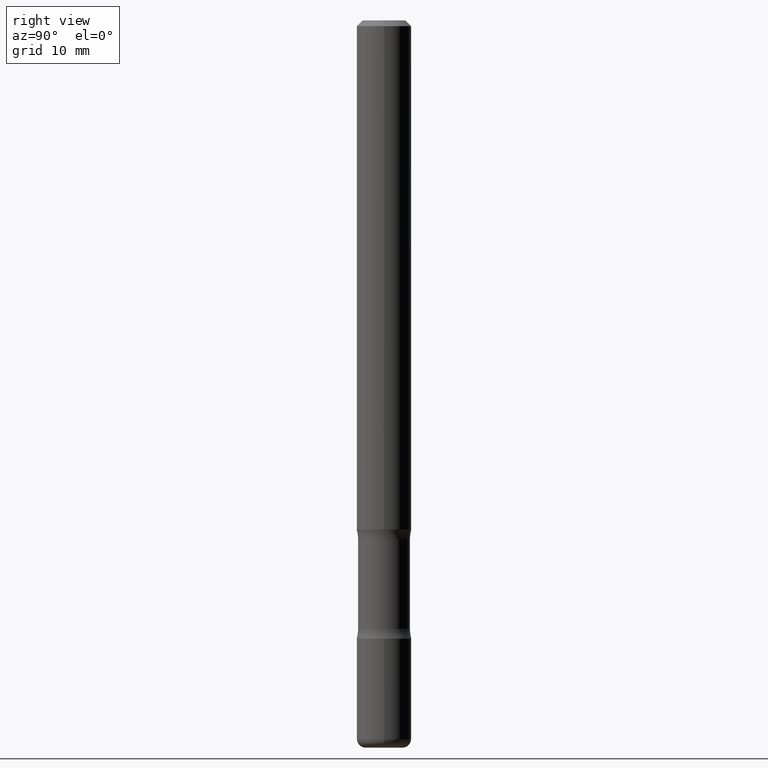
[diagram: clean part render]
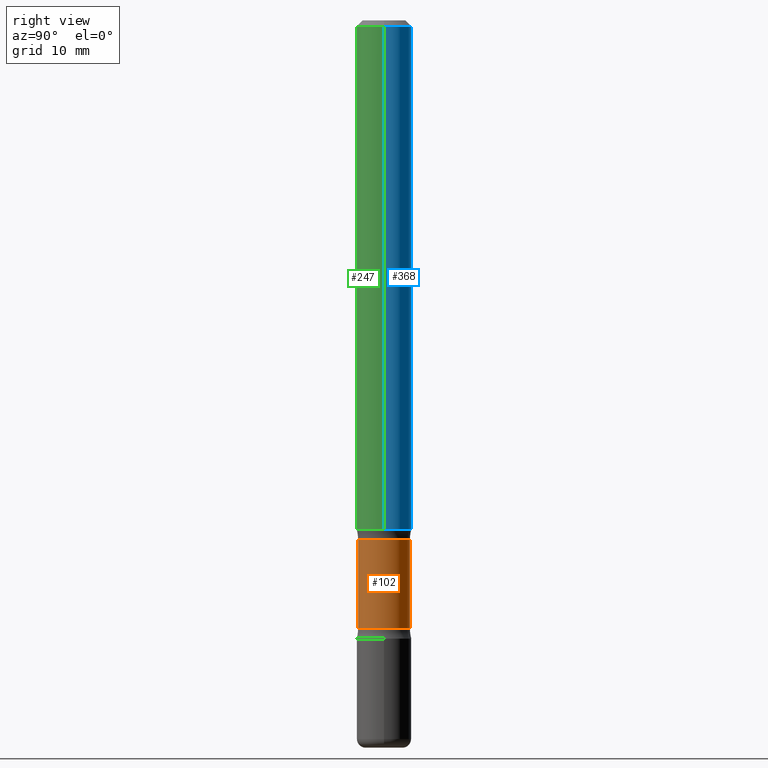
[diagram: same view with three faces highlighted in distinct colors, each labeled with its STEP entity id]
A machine part, right view with three faces highlighted in distinct colors.
Their STEP definitions:

[orange] entity #102 — the highlighted cylindrical surface (edge-blend (fillet) strip) has radius 2.2622 mm, axis along (0, -0, -1).
#14 = DIRECTION ( 'NONE',  ( 2.553476385947133355E-29, -3.336808337214295667E-15, -1.000000000000000000 ) ) ;
#21 = DIRECTION ( 'NONE',  ( 6.982962677686265133E-15, 1.000000000000000000, -3.067338098149349877E-15 ) ) ;
#35 = AXIS2_PLACEMENT_3D ( 'NONE', #134, #531, #336 ) ;
#44 = AXIS2_PLACEMENT_3D ( 'NONE', #393, #344, #498 ) ;
#78 = VECTOR ( 'NONE', #501, 39.37007874015748143 ) ;
#102 = ADVANCED_FACE ( 'NONE', ( #471 ), #425, .T. ) ;
#108 = CIRCLE ( 'NONE', #44, 0.08906249999999993339 ) ;
#134 = CARTESIAN_POINT ( 'NONE',  ( 6.154174857873591467E-29, -8.670700971497045879E-15, -2.500000000000000000 ) ) ;
#174 = ORIENTED_EDGE ( 'NONE', *, *, #269, .F. ) ;
#205 = ORIENTED_EDGE ( 'NONE', *, *, #530, .T. ) ;
#208 = VERTEX_POINT ( 'NONE', #372 ) ;
#217 = VECTOR ( 'NONE', #277, 39.37007874015748143 ) ;
#236 = CARTESIAN_POINT ( 'NONE',  ( 4.325656488947447574E-29, -6.281246590105103764E-15, -1.783910210022204623 ) ) ;
#239 = CARTESIAN_POINT ( 'NONE',  ( -6.270923951087521301E-16, -0.08906250000000723310, -2.091089789977795377 ) ) ;
#254 = EDGE_LOOP ( 'NONE', ( #452, #205, #174, #520 ) ) ;
#269 = EDGE_CURVE ( 'NONE', #208, #293, #108, .T. ) ;
#277 = DIRECTION ( 'NONE',  ( 2.553476385947133355E-29, -3.336808337214295667E-15, -1.000000000000000000 ) ) ;
#293 = VERTEX_POINT ( 'NONE', #239 ) ;
#321 = EDGE_CURVE ( 'NONE', #380, #208, #555, .T. ) ;
#336 = DIRECTION ( 'NONE',  ( 6.982962677686265133E-15, 1.000000000000000000, -6.134676196298701332E-15 ) ) ;
#344 = DIRECTION ( 'NONE',  ( 2.553476385947133355E-29, -3.336808337214295667E-15, -1.000000000000000000 ) ) ;
#372 = CARTESIAN_POINT ( 'NONE',  ( 6.219201134814836160E-16, 0.08906249999999261979, -2.091089789977795821 ) ) ;
#380 = VERTEX_POINT ( 'NONE', #457 ) ;
#393 = CARTESIAN_POINT ( 'NONE',  ( 5.110032292609207884E-29, -7.306245973522905960E-15, -2.091089789977795821 ) ) ;
#402 = LINE ( 'NONE', #454, #78 ) ;
#417 = CARTESIAN_POINT ( 'NONE',  ( -6.270923951087611034E-16, -0.08906250000000623390, -1.783910210022204401 ) ) ;
#425 = CYLINDRICAL_SURFACE ( 'NONE', #35, 0.08906249999999993339 ) ;
#429 = VERTEX_POINT ( 'NONE', #417 ) ;
#431 = CIRCLE ( 'NONE', #456, 0.08906249999999994726 ) ;
#451 = EDGE_CURVE ( 'NONE', #380, #429, #431, .T. ) ;
#452 = ORIENTED_EDGE ( 'NONE', *, *, #451, .T. ) ;
#454 = CARTESIAN_POINT ( 'NONE',  ( -6.110131029264649859E-16, -0.08906250000000860700, -2.499999999999999556 ) ) ;
#456 = AXIS2_PLACEMENT_3D ( 'NONE', #236, #14, #21 ) ;
#457 = CARTESIAN_POINT ( 'NONE',  ( 6.219201134814759246E-16, 0.08906249999999366063, -1.783910210022204845 ) ) ;
#464 = CARTESIAN_POINT ( 'NONE',  ( 6.219201134814940684E-16, 0.08906249999999125977, -2.500000000000000444 ) ) ;
#471 = FACE_OUTER_BOUND ( 'NONE', #254, .T. ) ;
#498 = DIRECTION ( 'NONE',  ( 6.982962677686265133E-15, 1.000000000000000000, -3.067338098149350666E-15 ) ) ;
#501 = DIRECTION ( 'NONE',  ( 2.553476385947133355E-29, -3.336808337214295667E-15, -1.000000000000000000 ) ) ;
#520 = ORIENTED_EDGE ( 'NONE', *, *, #321, .F. ) ;
#530 = EDGE_CURVE ( 'NONE', #429, #293, #402, .T. ) ;
#531 = DIRECTION ( 'NONE',  ( 2.553476385947133355E-29, -3.336808337214295667E-15, -1.000000000000000000 ) ) ;
#555 = LINE ( 'NONE', #464, #217 ) ;

[blue] entity #368 — the highlighted cylindrical surface (edge-blend (fillet) strip) has radius 2.3812 mm, axis along (-0, 0, 1).
#4 = AXIS2_PLACEMENT_3D ( 'NONE', #150, #148, #233 ) ;
#6 = ORIENTED_EDGE ( 'NONE', *, *, #92, .F. ) ;
#7 = LINE ( 'NONE', #183, #430 ) ;
#42 = CARTESIAN_POINT ( 'NONE',  ( -0.09374999999999981959, 5.848231242562233185E-16, -0.02000000000000001776 ) ) ;
#58 = VERTEX_POINT ( 'NONE', #341 ) ;
#68 = DIRECTION ( 'NONE',  ( -2.445468806185136597E-29, 3.491481338843145583E-15, 1.000000000000000000 ) ) ;
#76 = EDGE_CURVE ( 'NONE', #249, #58, #7, .T. ) ;
#82 = DIRECTION ( 'NONE',  ( -2.445468806185136877E-29, 3.491481338843145188E-15, 1.000000000000000000 ) ) ;
#92 = EDGE_CURVE ( 'NONE', #58, #164, #177, .T. ) ;
#126 = LINE ( 'NONE', #330, #266 ) ;
#148 = DIRECTION ( 'NONE',  ( -2.445468806185136597E-29, 3.491481338843145583E-15, 1.000000000000000000 ) ) ;
#150 = CARTESIAN_POINT ( 'NONE',  ( 4.279570410823988484E-29, -6.110092342975504671E-15, -1.750000000000000000 ) ) ;
#164 = VERTEX_POINT ( 'NONE', #42 ) ;
#171 = DIRECTION ( 'NONE',  ( 1.000000000000000000, -6.982962677686267499E-15, 0.000000000000000000 ) ) ;
#172 = EDGE_LOOP ( 'NONE', ( #436, #337, #6, #434 ) ) ;
#177 = CIRCLE ( 'NONE', #200, 0.09374999999999981959 ) ;
#183 = CARTESIAN_POINT ( 'NONE',  ( 0.09374999999999991673, -6.546527510330869125E-16, 4.571415727308685602E-30 ) ) ;
#200 = AXIS2_PLACEMENT_3D ( 'NONE', #428, #540, #171 ) ;
#201 = AXIS2_PLACEMENT_3D ( 'NONE', #500, #68, #229 ) ;
#227 = CIRCLE ( 'NONE', #4, 0.09375000000000004163 ) ;
#229 = DIRECTION ( 'NONE',  ( 1.000000000000000000, -6.982962677686266711E-15, 4.876176775795935793E-29 ) ) ;
#233 = DIRECTION ( 'NONE',  ( 1.000000000000000000, -6.982962677686269866E-15, 0.000000000000000000 ) ) ;
#249 = VERTEX_POINT ( 'NONE', #556 ) ;
#266 = VECTOR ( 'NONE', #82, 39.37007874015748143 ) ;
#312 = FACE_OUTER_BOUND ( 'NONE', #172, .T. ) ;
#330 = CARTESIAN_POINT ( 'NONE',  ( -0.09374999999999991673, 6.661338147750933326E-16, -4.611501647113969791E-30 ) ) ;
#337 = ORIENTED_EDGE ( 'NONE', *, *, #348, .T. ) ;
#341 = CARTESIAN_POINT ( 'NONE',  ( 0.09374999999999981959, -7.130013140679428044E-16, -0.02000000000000001776 ) ) ;
#348 = EDGE_CURVE ( 'NONE', #391, #164, #126, .T. ) ;
#350 = DIRECTION ( 'NONE',  ( -2.445468806185136877E-29, 3.491481338843145188E-15, 1.000000000000000000 ) ) ;
#351 = CARTESIAN_POINT ( 'NONE',  ( -0.09375000000000004163, -2.423827170101085722E-15, -1.750000000000000000 ) ) ;
#364 = EDGE_CURVE ( 'NONE', #249, #391, #227, .T. ) ;
#368 = ADVANCED_FACE ( 'NONE', ( #312 ), #407, .T. ) ;
#391 = VERTEX_POINT ( 'NONE', #351 ) ;
#407 = CYLINDRICAL_SURFACE ( 'NONE', #201, 0.09374999999999991673 ) ;
#428 = CARTESIAN_POINT ( 'NONE',  ( 4.890937612370276662E-31, -6.982962677686296539E-17, -0.02000000000000001776 ) ) ;
#430 = VECTOR ( 'NONE', #350, 39.37007874015748143 ) ;
#434 = ORIENTED_EDGE ( 'NONE', *, *, #76, .F. ) ;
#436 = ORIENTED_EDGE ( 'NONE', *, *, #364, .T. ) ;
#500 = CARTESIAN_POINT ( 'NONE',  ( 0.000000000000000000, 0.000000000000000000, 0.000000000000000000 ) ) ;
#540 = DIRECTION ( 'NONE',  ( -2.445468806185136597E-29, 3.491481338843145583E-15, 1.000000000000000000 ) ) ;
#556 = CARTESIAN_POINT ( 'NONE',  ( 0.09375000000000004163, -6.764745094008592175E-15, -1.750000000000000000 ) ) ;

[green] entity #247 — the highlighted cylindrical surface (edge-blend (fillet) strip) has radius 2.3812 mm, axis along (-0, 0, 1).
#7 = LINE ( 'NONE', #183, #430 ) ;
#15 = CIRCLE ( 'NONE', #86, 0.09374999999999981959 ) ;
#39 = CARTESIAN_POINT ( 'NONE',  ( 4.890937612370276662E-31, -6.982962677686296539E-17, -0.02000000000000001776 ) ) ;
#42 = CARTESIAN_POINT ( 'NONE',  ( -0.09374999999999981959, 5.848231242562233185E-16, -0.02000000000000001776 ) ) ;
#58 = VERTEX_POINT ( 'NONE', #341 ) ;
#63 = ORIENTED_EDGE ( 'NONE', *, *, #248, .T. ) ;
#76 = EDGE_CURVE ( 'NONE', #249, #58, #7, .T. ) ;
#82 = DIRECTION ( 'NONE',  ( -2.445468806185136877E-29, 3.491481338843145188E-15, 1.000000000000000000 ) ) ;
#86 = AXIS2_PLACEMENT_3D ( 'NONE', #39, #324, #365 ) ;
#126 = LINE ( 'NONE', #330, #266 ) ;
#164 = VERTEX_POINT ( 'NONE', #42 ) ;
#183 = CARTESIAN_POINT ( 'NONE',  ( 0.09374999999999991673, -6.546527510330869125E-16, 4.571415727308685602E-30 ) ) ;
#195 = CARTESIAN_POINT ( 'NONE',  ( 0.000000000000000000, 0.000000000000000000, 0.000000000000000000 ) ) ;
#202 = CARTESIAN_POINT ( 'NONE',  ( 4.279570410823988484E-29, -6.110092342975504671E-15, -1.750000000000000000 ) ) ;
#245 = AXIS2_PLACEMENT_3D ( 'NONE', #195, #366, #553 ) ;
#247 = ADVANCED_FACE ( 'NONE', ( #468 ), #291, .T. ) ;
#248 = EDGE_CURVE ( 'NONE', #391, #249, #333, .T. ) ;
#249 = VERTEX_POINT ( 'NONE', #556 ) ;
#264 = ORIENTED_EDGE ( 'NONE', *, *, #348, .F. ) ;
#266 = VECTOR ( 'NONE', #82, 39.37007874015748143 ) ;
#283 = DIRECTION ( 'NONE',  ( 1.000000000000000000, -6.982962677686269866E-15, 0.000000000000000000 ) ) ;
#291 = CYLINDRICAL_SURFACE ( 'NONE', #245, 0.09374999999999991673 ) ;
#304 = EDGE_CURVE ( 'NONE', #164, #58, #15, .T. ) ;
#324 = DIRECTION ( 'NONE',  ( -2.445468806185136597E-29, 3.491481338843145583E-15, 1.000000000000000000 ) ) ;
#325 = DIRECTION ( 'NONE',  ( -2.445468806185136597E-29, 3.491481338843145583E-15, 1.000000000000000000 ) ) ;
#330 = CARTESIAN_POINT ( 'NONE',  ( -0.09374999999999991673, 6.661338147750933326E-16, -4.611501647113969791E-30 ) ) ;
#333 = CIRCLE ( 'NONE', #521, 0.09375000000000004163 ) ;
#341 = CARTESIAN_POINT ( 'NONE',  ( 0.09374999999999981959, -7.130013140679428044E-16, -0.02000000000000001776 ) ) ;
#348 = EDGE_CURVE ( 'NONE', #391, #164, #126, .T. ) ;
#350 = DIRECTION ( 'NONE',  ( -2.445468806185136877E-29, 3.491481338843145188E-15, 1.000000000000000000 ) ) ;
#351 = CARTESIAN_POINT ( 'NONE',  ( -0.09375000000000004163, -2.423827170101085722E-15, -1.750000000000000000 ) ) ;
#365 = DIRECTION ( 'NONE',  ( 1.000000000000000000, -6.982962677686267499E-15, 0.000000000000000000 ) ) ;
#366 = DIRECTION ( 'NONE',  ( -2.445468806185136597E-29, 3.491481338843145583E-15, 1.000000000000000000 ) ) ;
#391 = VERTEX_POINT ( 'NONE', #351 ) ;
#423 = ORIENTED_EDGE ( 'NONE', *, *, #76, .T. ) ;
#430 = VECTOR ( 'NONE', #350, 39.37007874015748143 ) ;
#444 = EDGE_LOOP ( 'NONE', ( #264, #63, #423, #537 ) ) ;
#468 = FACE_OUTER_BOUND ( 'NONE', #444, .T. ) ;
#521 = AXIS2_PLACEMENT_3D ( 'NONE', #202, #325, #283 ) ;
#537 = ORIENTED_EDGE ( 'NONE', *, *, #304, .F. ) ;
#553 = DIRECTION ( 'NONE',  ( 1.000000000000000000, -6.982962677686266711E-15, 4.876176775795935793E-29 ) ) ;
#556 = CARTESIAN_POINT ( 'NONE',  ( 0.09375000000000004163, -6.764745094008592175E-15, -1.750000000000000000 ) ) ;